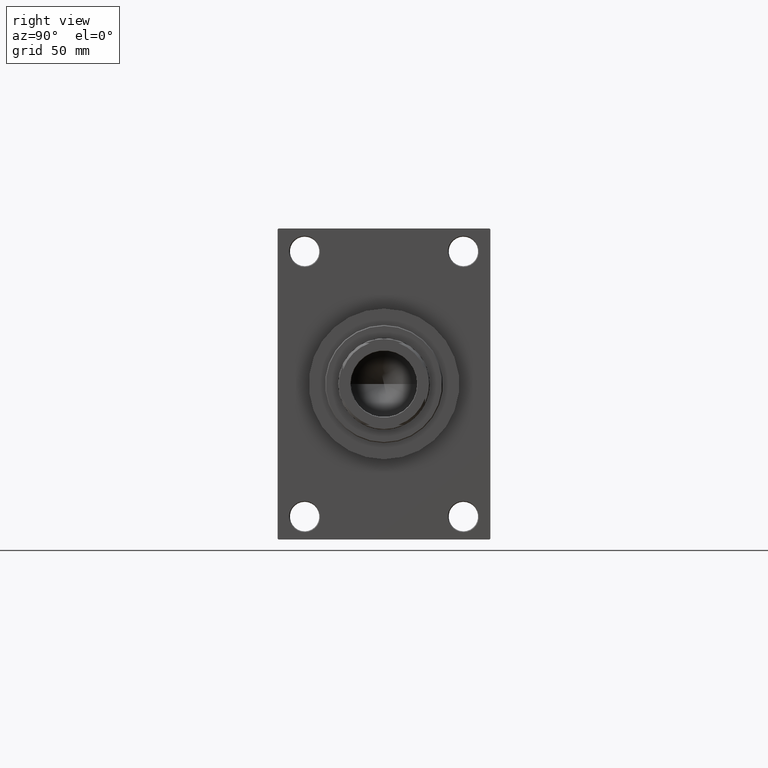
[diagram: clean part render]
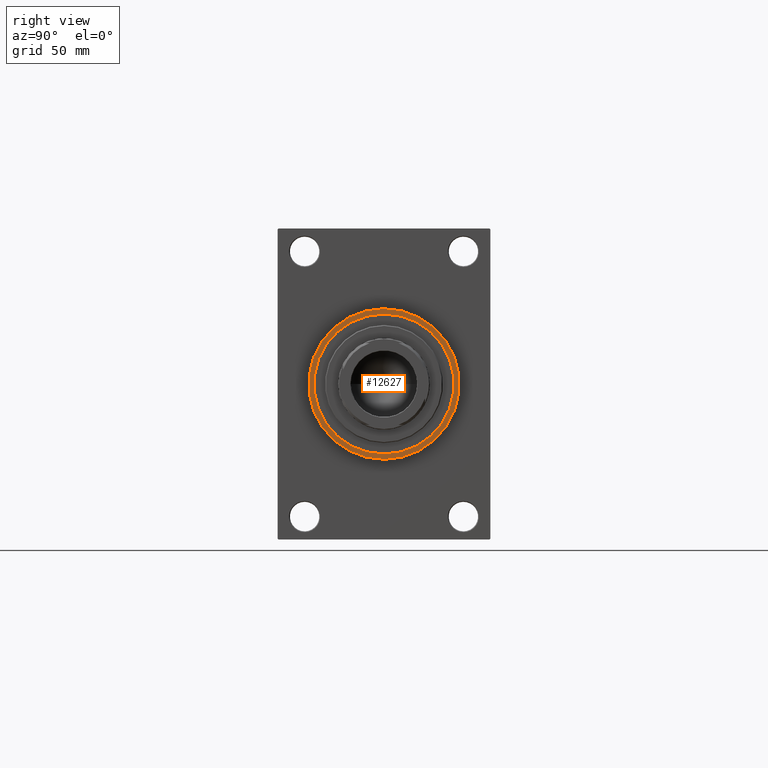
[diagram: same view with one face highlighted and labeled with its STEP entity id]
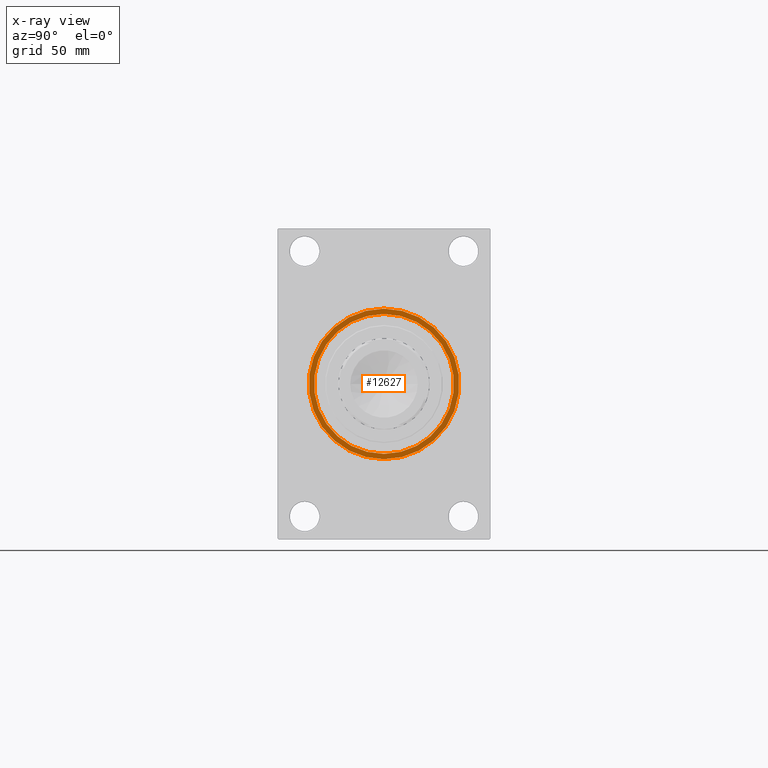
[diagram: x-ray of the same camera — body ghosted, the highlighted face saturated]
A machine part, right view. The second image highlights one B-rep face of the part: STEP entity #12627.
The next image is the same camera in x-ray: the body ghosted, the highlighted face saturated — about 0% of this face is hidden behind the body in this view.
In plain terms, the highlighted planar face has unit normal (1, 0, 0).
Its self-contained STEP definition (entity closure, byte-faithful):
#872 = EDGE_CURVE ( 'NONE', #21536, #5482, #1485, .T. ) ;
#1485 = CIRCLE ( 'NONE', #28517, 42.75000000000000000 ) ;
#2563 = CARTESIAN_POINT ( 'NONE',  ( 328.0000000000000000, 0.000000000000000000, 0.000000000000000000 ) ) ;
#2792 = DIRECTION ( 'NONE',  ( 1.000000000000000000, 0.000000000000000000, 0.000000000000000000 ) ) ;
#3849 = PLANE ( 'NONE',  #45130 ) ;
#3959 = DIRECTION ( 'NONE',  ( 1.000000000000000000, 0.000000000000000000, 0.000000000000000000 ) ) ;
#5482 = VERTEX_POINT ( 'NONE', #11501 ) ;
#7712 = CARTESIAN_POINT ( 'NONE',  ( 328.0000000000000000, 0.000000000000000000, 0.000000000000000000 ) ) ;
#8288 = EDGE_CURVE ( 'NONE', #5482, #21536, #14753, .T. ) ;
#10631 = DIRECTION ( 'NONE',  ( 0.000000000000000000, 0.000000000000000000, -1.000000000000000000 ) ) ;
#10980 = DIRECTION ( 'NONE',  ( 0.000000000000000000, 0.000000000000000000, -1.000000000000000000 ) ) ;
#11501 = CARTESIAN_POINT ( 'NONE',  ( 328.0000000000000000, 5.235365066354935472E-15, 42.75000000000000000 ) ) ;
#12627 = ADVANCED_FACE ( 'NONE', ( #21754, #18357 ), #3849, .T. ) ;
#14753 = CIRCLE ( 'NONE', #23985, 42.75000000000000000 ) ;
#16265 = CARTESIAN_POINT ( 'NONE',  ( 328.0000000000000000, 0.000000000000000000, 0.000000000000000000 ) ) ;
#16957 = CARTESIAN_POINT ( 'NONE',  ( 328.0000000000000000, 0.000000000000000000, 46.00000000000000000 ) ) ;
#17179 = AXIS2_PLACEMENT_3D ( 'NONE', #16265, #28107, #38472 ) ;
#18111 = ORIENTED_EDGE ( 'NONE', *, *, #37412, .T. ) ;
#18357 = FACE_OUTER_BOUND ( 'NONE', #30831, .T. ) ;
#19107 = DIRECTION ( 'NONE',  ( 1.000000000000000000, 0.000000000000000000, 0.000000000000000000 ) ) ;
#19820 = CARTESIAN_POINT ( 'NONE',  ( 328.0000000000000000, 0.000000000000000000, -42.75000000000000000 ) ) ;
#21536 = VERTEX_POINT ( 'NONE', #19820 ) ;
#21754 = FACE_BOUND ( 'NONE', #27717, .T. ) ;
#22998 = AXIS2_PLACEMENT_3D ( 'NONE', #2563, #2792, #32746 ) ;
#23414 = EDGE_CURVE ( 'NONE', #26412, #32909, #31469, .T. ) ;
#23985 = AXIS2_PLACEMENT_3D ( 'NONE', #37044, #3959, #10980 ) ;
#26412 = VERTEX_POINT ( 'NONE', #46279 ) ;
#26709 = ORIENTED_EDGE ( 'NONE', *, *, #8288, .F. ) ;
#26914 = ORIENTED_EDGE ( 'NONE', *, *, #872, .F. ) ;
#27717 = EDGE_LOOP ( 'NONE', ( #26914, #26709 ) ) ;
#28107 = DIRECTION ( 'NONE',  ( 1.000000000000000000, 0.000000000000000000, 0.000000000000000000 ) ) ;
#28517 = AXIS2_PLACEMENT_3D ( 'NONE', #33827, #19107, #41545 ) ;
#30831 = EDGE_LOOP ( 'NONE', ( #18111, #40701 ) ) ;
#31469 = CIRCLE ( 'NONE', #22998, 46.00000000000000000 ) ;
#32746 = DIRECTION ( 'NONE',  ( 0.000000000000000000, 0.000000000000000000, -1.000000000000000000 ) ) ;
#32909 = VERTEX_POINT ( 'NONE', #16957 ) ;
#33827 = CARTESIAN_POINT ( 'NONE',  ( 328.0000000000000000, 0.000000000000000000, 0.000000000000000000 ) ) ;
#37044 = CARTESIAN_POINT ( 'NONE',  ( 328.0000000000000000, 0.000000000000000000, 0.000000000000000000 ) ) ;
#37412 = EDGE_CURVE ( 'NONE', #32909, #26412, #47274, .T. ) ;
#38472 = DIRECTION ( 'NONE',  ( 0.000000000000000000, 0.000000000000000000, -1.000000000000000000 ) ) ;
#40701 = ORIENTED_EDGE ( 'NONE', *, *, #23414, .T. ) ;
#41545 = DIRECTION ( 'NONE',  ( 0.000000000000000000, 0.000000000000000000, -1.000000000000000000 ) ) ;
#45130 = AXIS2_PLACEMENT_3D ( 'NONE', #7712, #47578, #10631 ) ;
#46279 = CARTESIAN_POINT ( 'NONE',  ( 328.0000000000000000, 5.633375276077824704E-15, -46.00000000000000000 ) ) ;
#47274 = CIRCLE ( 'NONE', #17179, 46.00000000000000000 ) ;
#47578 = DIRECTION ( 'NONE',  ( 1.000000000000000000, 0.000000000000000000, 0.000000000000000000 ) ) ;